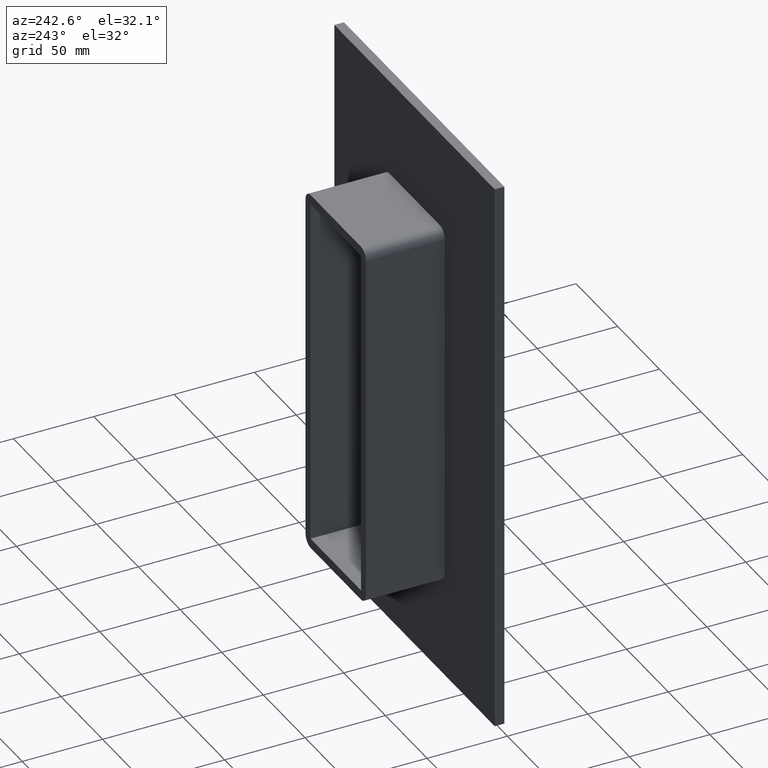
[diagram: clean part render]
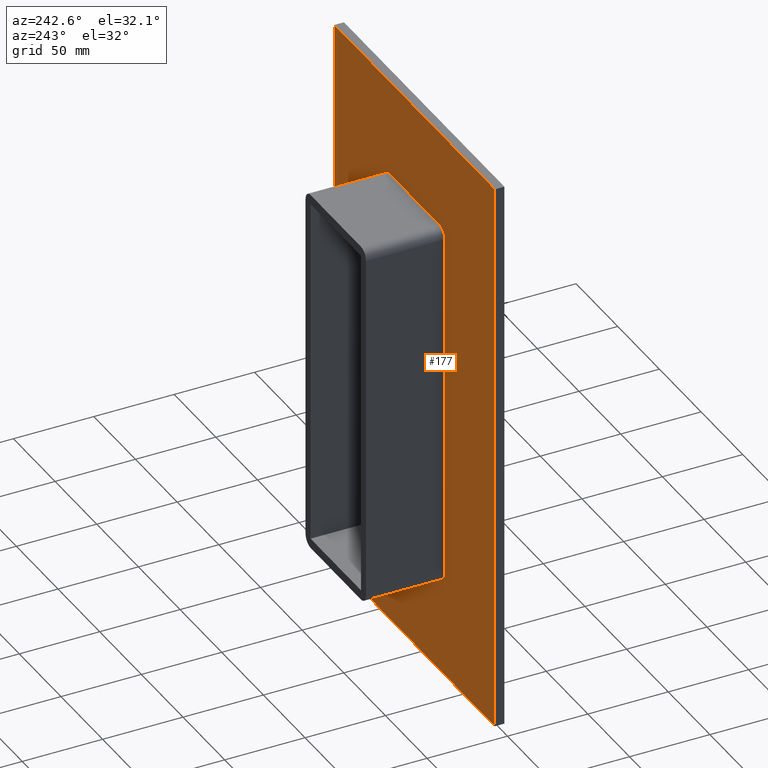
[diagram: same view with one face highlighted and labeled with its STEP entity id]
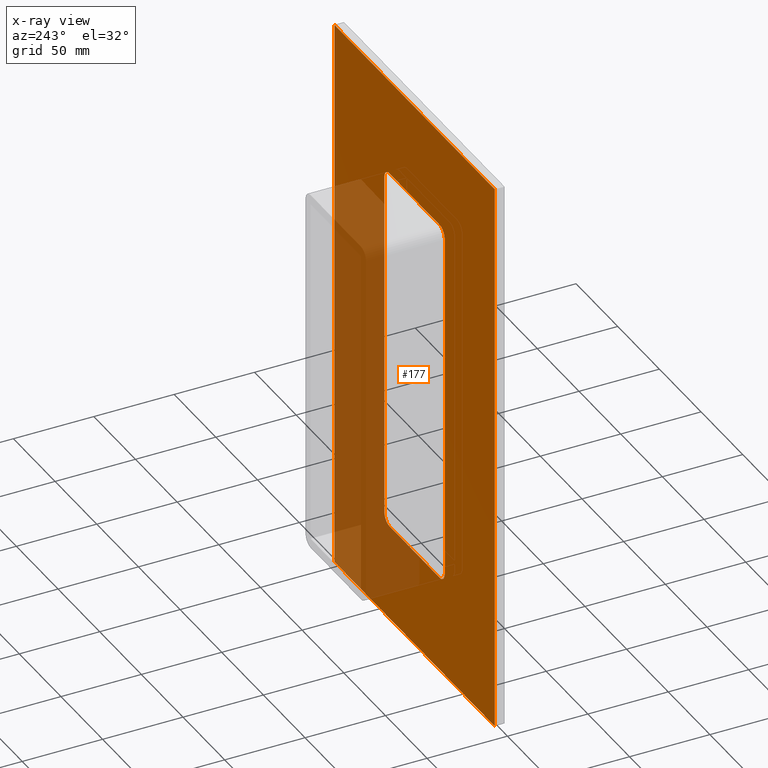
[diagram: x-ray of the same camera — body ghosted, the highlighted face saturated]
A machine part, auxiliary view. The second image highlights one B-rep face of the part: STEP entity #177.
The next image is the same camera in x-ray: the body ghosted, the highlighted face saturated — about 33% of this face is hidden behind the body in this view.
In plain terms, the highlighted planar face has unit normal (0, 1, 0).
Its self-contained STEP definition (entity closure, byte-faithful):
#68=CARTESIAN_POINT('',(0.0,6.000000000000001,0.0));
#69=DIRECTION('',(0.0,1.0,0.0));
#70=DIRECTION('',(0.0,0.0,1.0));
#71=AXIS2_PLACEMENT_3D('',#68,#69,#70);
#72=PLANE('',#71);
#73=CARTESIAN_POINT('',(96.25,6.000000000000001,-175.00000000000003));
#74=VERTEX_POINT('',#73);
#75=CARTESIAN_POINT('',(-96.25,6.000000000000001,-175.00000000000003));
#76=VERTEX_POINT('',#75);
#77=CARTESIAN_POINT('',(96.25,6.000000000000001,-175.00000000000003));
#78=DIRECTION('',(-1.0,0.0,0.0));
#79=VECTOR('',#78,192.5);
#80=LINE('',#77,#79);
#81=EDGE_CURVE('',#74,#76,#80,.T.);
#82=ORIENTED_EDGE('',*,*,#81,.T.);
#83=CARTESIAN_POINT('',(-96.25,6.000000000000001,175.00000000000003));
#84=VERTEX_POINT('',#83);
#85=CARTESIAN_POINT('',(-96.25,6.000000000000001,-175.00000000000003));
#86=DIRECTION('',(0.0,0.0,1.0));
#87=VECTOR('',#86,350.00000000000006);
#88=LINE('',#85,#87);
#89=EDGE_CURVE('',#76,#84,#88,.T.);
#90=ORIENTED_EDGE('',*,*,#89,.T.);
#91=CARTESIAN_POINT('',(96.25,6.000000000000001,175.00000000000003));
#92=VERTEX_POINT('',#91);
#93=CARTESIAN_POINT('',(-96.25,6.000000000000001,175.00000000000003));
#94=DIRECTION('',(1.0,0.0,0.0));
#95=VECTOR('',#94,192.5);
#96=LINE('',#93,#95);
#97=EDGE_CURVE('',#84,#92,#96,.T.);
#98=ORIENTED_EDGE('',*,*,#97,.T.);
#99=CARTESIAN_POINT('',(96.25,6.000000000000001,175.00000000000003));
#100=DIRECTION('',(0.0,0.0,-1.0));
#101=VECTOR('',#100,350.00000000000006);
#102=LINE('',#99,#101);
#103=EDGE_CURVE('',#92,#74,#102,.T.);
#104=ORIENTED_EDGE('',*,*,#103,.T.);
#105=EDGE_LOOP('',(#82,#90,#98,#104));
#106=FACE_OUTER_BOUND('',#105,.T.);
#107=CARTESIAN_POINT('',(30.249999999999986,6.000000000000001,115.00000000000003));
#108=VERTEX_POINT('',#107);
#109=CARTESIAN_POINT('',(36.25,6.000000000000001,109.00000000000006));
#110=VERTEX_POINT('',#109);
#111=CARTESIAN_POINT('',(30.249999999999986,6.000000000000001,109.00000000000006));
#112=DIRECTION('',(0.0,1.0,0.0));
#113=DIRECTION('',(0.0,0.0,1.0));
#114=AXIS2_PLACEMENT_3D('',#111,#112,#113);
#115=CIRCLE('',#114,6.000000000000014);
#116=EDGE_CURVE('',#108,#110,#115,.T.);
#117=ORIENTED_EDGE('',*,*,#116,.F.);
#118=CARTESIAN_POINT('',(-30.249999999999986,6.000000000000001,115.00000000000003));
#119=VERTEX_POINT('',#118);
#120=CARTESIAN_POINT('',(-30.249999999999986,6.000000000000001,115.00000000000003));
#121=DIRECTION('',(1.0,0.0,0.0));
#122=VECTOR('',#121,60.499999999999972);
#123=LINE('',#120,#122);
#124=EDGE_CURVE('',#119,#108,#123,.T.);
#125=ORIENTED_EDGE('',*,*,#124,.F.);
#126=CARTESIAN_POINT('',(-36.25,6.000000000000001,109.00000000000006));
#127=VERTEX_POINT('',#126);
#128=CARTESIAN_POINT('',(-30.249999999999986,6.000000000000001,109.00000000000006));
#129=DIRECTION('',(0.0,1.0,0.0));
#130=DIRECTION('',(-1.0,0.0,0.0));
#131=AXIS2_PLACEMENT_3D('',#128,#129,#130);
#132=CIRCLE('',#131,6.000000000000014);
#133=EDGE_CURVE('',#127,#119,#132,.T.);
#134=ORIENTED_EDGE('',*,*,#133,.F.);
#135=CARTESIAN_POINT('',(-36.25,6.000000000000001,-109.00000000000003));
#136=VERTEX_POINT('',#135);
#137=CARTESIAN_POINT('',(-36.25,6.000000000000001,-109.00000000000003));
#138=DIRECTION('',(0.0,0.0,1.0));
#139=VECTOR('',#138,218.00000000000011);
#140=LINE('',#137,#139);
#141=EDGE_CURVE('',#136,#127,#140,.T.);
#142=ORIENTED_EDGE('',*,*,#141,.F.);
#143=CARTESIAN_POINT('',(-30.249999999999986,6.000000000000001,-114.99999999999999));
#144=VERTEX_POINT('',#143);
#145=CARTESIAN_POINT('',(-30.249999999999986,6.000000000000001,-108.99999999999999));
#146=DIRECTION('',(0.0,1.0,0.0));
#147=DIRECTION('',(0.0,0.0,-1.0));
#148=AXIS2_PLACEMENT_3D('',#145,#146,#147);
#149=CIRCLE('',#148,6.000000000000014);
#150=EDGE_CURVE('',#144,#136,#149,.T.);
#151=ORIENTED_EDGE('',*,*,#150,.F.);
#152=CARTESIAN_POINT('',(30.249999999999986,6.000000000000001,-114.99999999999999));
#153=VERTEX_POINT('',#152);
#154=CARTESIAN_POINT('',(30.249999999999986,6.000000000000001,-114.99999999999999));
#155=DIRECTION('',(-1.0,0.0,0.0));
#156=VECTOR('',#155,60.499999999999972);
#157=LINE('',#154,#156);
#158=EDGE_CURVE('',#153,#144,#157,.T.);
#159=ORIENTED_EDGE('',*,*,#158,.F.);
#160=CARTESIAN_POINT('',(36.25,6.000000000000001,-109.00000000000003));
#161=VERTEX_POINT('',#160);
#162=CARTESIAN_POINT('',(30.249999999999986,6.000000000000001,-108.99999999999999));
#163=DIRECTION('',(0.0,1.0,0.0));
#164=DIRECTION('',(1.0,0.0,0.0));
#165=AXIS2_PLACEMENT_3D('',#162,#163,#164);
#166=CIRCLE('',#165,6.000000000000014);
#167=EDGE_CURVE('',#161,#153,#166,.T.);
#168=ORIENTED_EDGE('',*,*,#167,.F.);
#169=CARTESIAN_POINT('',(36.25,6.000000000000001,109.00000000000006));
#170=DIRECTION('',(0.0,0.0,-1.0));
#171=VECTOR('',#170,218.00000000000009);
#172=LINE('',#169,#171);
#173=EDGE_CURVE('',#110,#161,#172,.T.);
#174=ORIENTED_EDGE('',*,*,#173,.F.);
#175=EDGE_LOOP('',(#117,#125,#134,#142,#151,#159,#168,#174));
#176=FACE_BOUND('',#175,.T.);
#177=ADVANCED_FACE('',(#106,#176),#72,.T.);